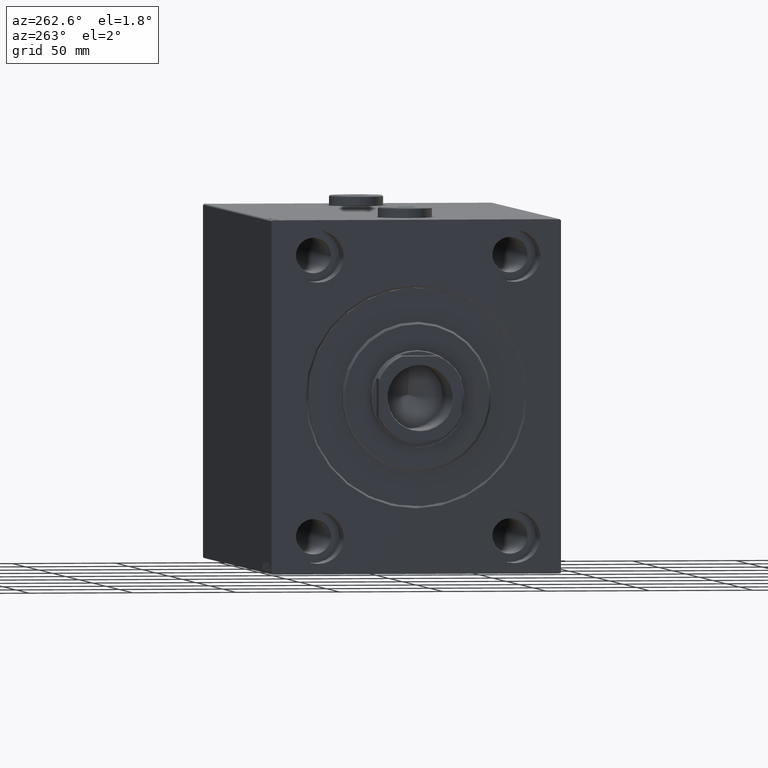
[diagram: clean part render]
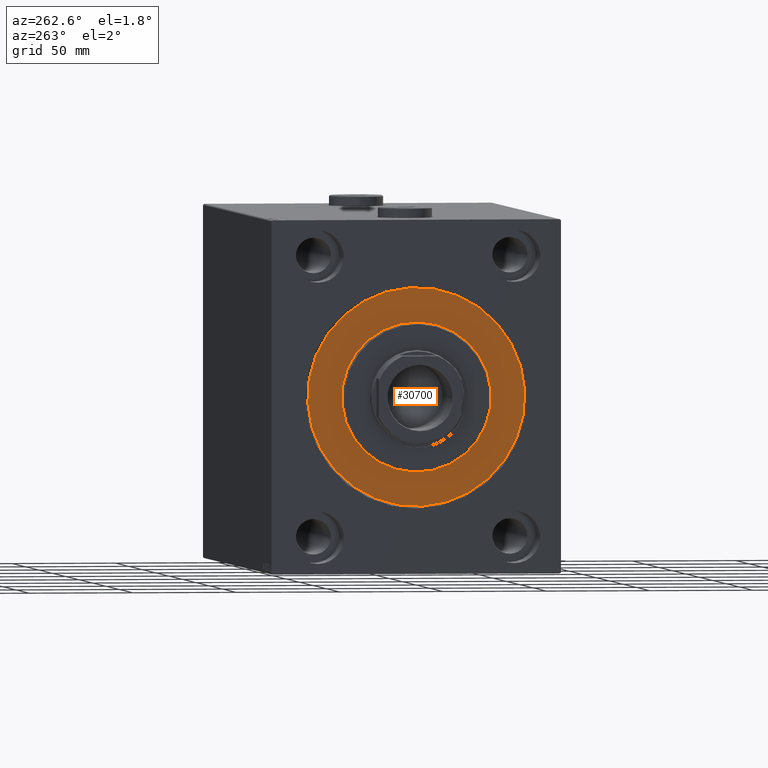
[diagram: same view with one face highlighted and labeled with its STEP entity id]
A machine part, auxiliary view. The second image highlights one B-rep face of the part: STEP entity #30700.
In plain terms, the highlighted planar face has unit normal (1, 0, -0).
Its self-contained STEP definition (entity closure, byte-faithful):
#714 = VERTEX_POINT ( 'NONE', #14835 ) ;
#3112 = EDGE_CURVE ( 'NONE', #13140, #41280, #16362, .T. ) ;
#3559 = EDGE_LOOP ( 'NONE', ( #35960, #7405 ) ) ;
#3606 = DIRECTION ( 'NONE',  ( -1.000000000000000000, 0.000000000000000000, 0.000000000000000000 ) ) ;
#3789 = CARTESIAN_POINT ( 'NONE',  ( 0.000000000000000000, 0.000000000000000000, 0.000000000000000000 ) ) ;
#5212 = AXIS2_PLACEMENT_3D ( 'NONE', #3789, #28309, #35861 ) ;
#7405 = ORIENTED_EDGE ( 'NONE', *, *, #3112, .F. ) ;
#7743 = CARTESIAN_POINT ( 'NONE',  ( 0.000000000000000000, 6.429395695523603167E-15, 52.49999999999999289 ) ) ;
#8259 = ORIENTED_EDGE ( 'NONE', *, *, #41569, .F. ) ;
#9985 = DIRECTION ( 'NONE',  ( 1.000000000000000000, -0.000000000000000000, 0.000000000000000000 ) ) ;
#10256 = CARTESIAN_POINT ( 'NONE',  ( 0.000000000000000000, 0.000000000000000000, 0.000000000000000000 ) ) ;
#13140 = VERTEX_POINT ( 'NONE', #7743 ) ;
#14378 = PLANE ( 'NONE',  #40404 ) ;
#14835 = CARTESIAN_POINT ( 'NONE',  ( 0.000000000000000000, 4.408728476930470856E-15, -36.00000000000000000 ) ) ;
#16362 = CIRCLE ( 'NONE', #33203, 52.49999999999999289 ) ;
#16491 = AXIS2_PLACEMENT_3D ( 'NONE', #44519, #37879, #38102 ) ;
#16766 = EDGE_LOOP ( 'NONE', ( #8259, #24009 ) ) ;
#19961 = CARTESIAN_POINT ( 'NONE',  ( 0.000000000000000000, 0.000000000000000000, 36.00000000000000000 ) ) ;
#20672 = CARTESIAN_POINT ( 'NONE',  ( 0.000000000000000000, 0.000000000000000000, 0.000000000000000000 ) ) ;
#23413 = DIRECTION ( 'NONE',  ( -1.000000000000000000, 0.000000000000000000, 0.000000000000000000 ) ) ;
#24009 = ORIENTED_EDGE ( 'NONE', *, *, #39624, .F. ) ;
#24238 = DIRECTION ( 'NONE',  ( 0.000000000000000000, 0.000000000000000000, 1.000000000000000000 ) ) ;
#26953 = CARTESIAN_POINT ( 'NONE',  ( 0.000000000000000000, 0.000000000000000000, 0.000000000000000000 ) ) ;
#27892 = CIRCLE ( 'NONE', #5212, 52.49999999999999289 ) ;
#28017 = EDGE_CURVE ( 'NONE', #41280, #13140, #27892, .T. ) ;
#28309 = DIRECTION ( 'NONE',  ( -1.000000000000000000, 0.000000000000000000, 0.000000000000000000 ) ) ;
#30164 = DIRECTION ( 'NONE',  ( 0.000000000000000000, 0.000000000000000000, -1.000000000000000000 ) ) ;
#30700 = ADVANCED_FACE ( 'NONE', ( #31796, #31344 ), #14378, .F. ) ;
#31344 = FACE_OUTER_BOUND ( 'NONE', #3559, .T. ) ;
#31796 = FACE_BOUND ( 'NONE', #16766, .T. ) ;
#33203 = AXIS2_PLACEMENT_3D ( 'NONE', #20672, #23413, #44270 ) ;
#34808 = CIRCLE ( 'NONE', #16491, 36.00000000000000000 ) ;
#35861 = DIRECTION ( 'NONE',  ( 0.000000000000000000, 0.000000000000000000, 1.000000000000000000 ) ) ;
#35960 = ORIENTED_EDGE ( 'NONE', *, *, #28017, .F. ) ;
#37879 = DIRECTION ( 'NONE',  ( 1.000000000000000000, -0.000000000000000000, 0.000000000000000000 ) ) ;
#38102 = DIRECTION ( 'NONE',  ( 0.000000000000000000, 0.000000000000000000, -1.000000000000000000 ) ) ;
#39624 = EDGE_CURVE ( 'NONE', #714, #39995, #34808, .T. ) ;
#39995 = VERTEX_POINT ( 'NONE', #19961 ) ;
#40404 = AXIS2_PLACEMENT_3D ( 'NONE', #10256, #3606, #24238 ) ;
#41280 = VERTEX_POINT ( 'NONE', #43801 ) ;
#41569 = EDGE_CURVE ( 'NONE', #39995, #714, #42159, .T. ) ;
#42159 = CIRCLE ( 'NONE', #45097, 36.00000000000000000 ) ;
#43801 = CARTESIAN_POINT ( 'NONE',  ( 0.000000000000000000, 0.000000000000000000, -52.49999999999999289 ) ) ;
#44270 = DIRECTION ( 'NONE',  ( 0.000000000000000000, 0.000000000000000000, 1.000000000000000000 ) ) ;
#44519 = CARTESIAN_POINT ( 'NONE',  ( 0.000000000000000000, 0.000000000000000000, 0.000000000000000000 ) ) ;
#45097 = AXIS2_PLACEMENT_3D ( 'NONE', #26953, #9985, #30164 ) ;